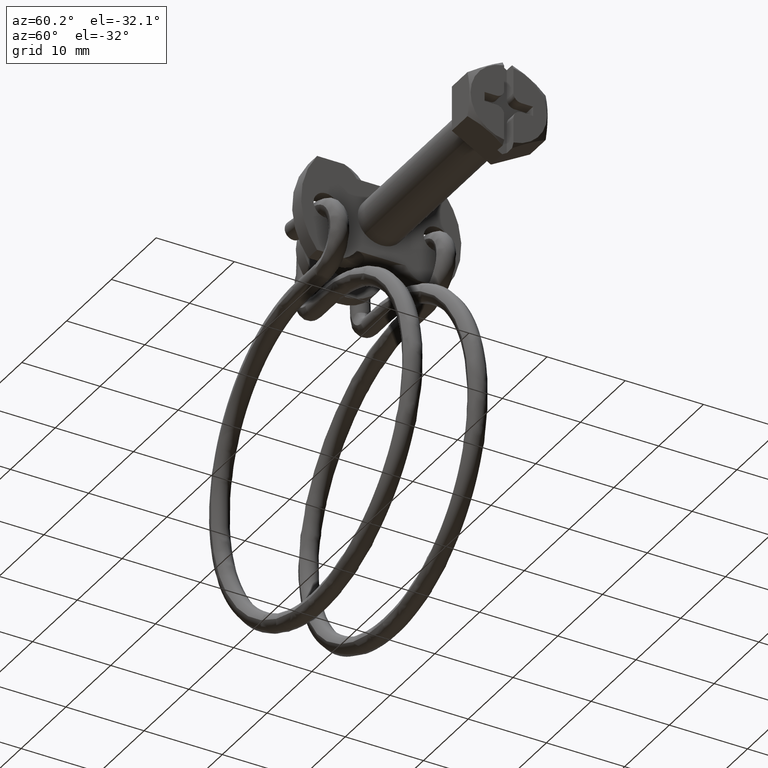
[diagram: clean part render]
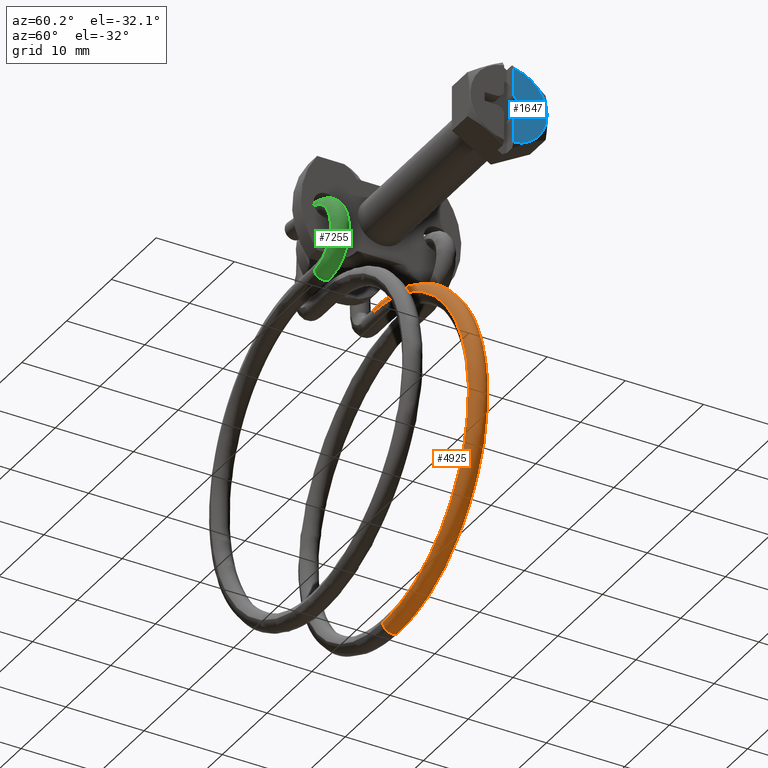
[diagram: same view with three faces highlighted in distinct colors, each labeled with its STEP entity id]
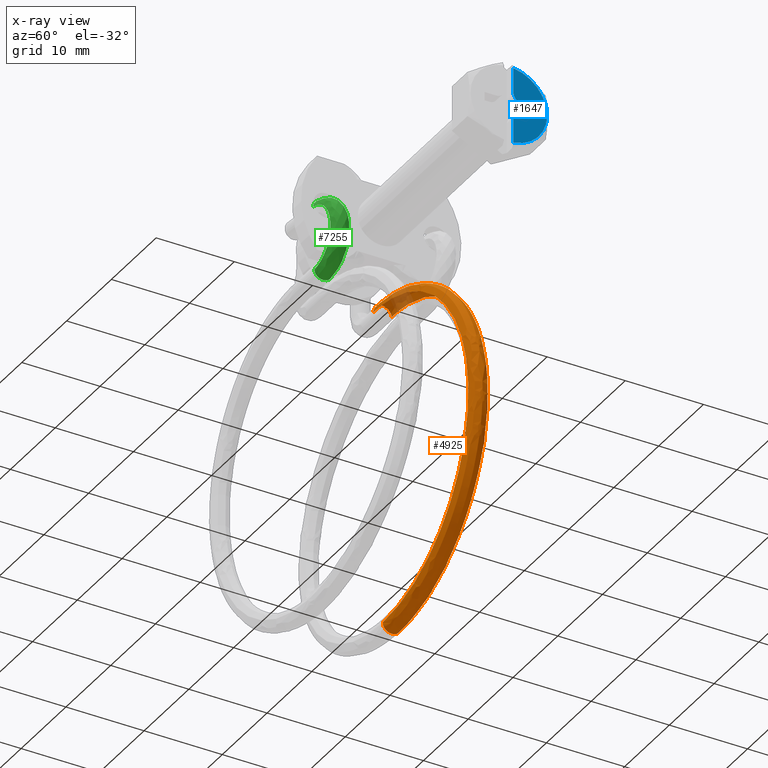
[diagram: x-ray of the same camera — body ghosted, the three highlighted faces saturated]
A machine part, auxiliary view with three faces highlighted in distinct colors.
The next image is the same camera in x-ray (body ghosted, the three faces saturated) — at least one of them is partly hidden behind the body in this view.
Their STEP definitions:

[orange] entity #4925 — the highlighted face is a freeform B-spline surface patch.
#4174=CARTESIAN_POINT('',(-30.454075023304409,5.899512904609259,-48.003588775773807));
#4175=VERTEX_POINT('',#4174);
#4200=CARTESIAN_POINT('',(-30.454061088412811,3.600487095402431,-48.070524030237998));
#4201=VERTEX_POINT('',#4200);
#4421=CARTESIAN_POINT('',(-30.454061088412811,3.600487095402431,-48.070524030237998));
#4422=CARTESIAN_POINT('',(-30.454099338260310,3.609248899652174,-48.371465802510500));
#4423=CARTESIAN_POINT('',(-30.454138103474818,3.741843315246648,-48.666947515876707));
#4424=CARTESIAN_POINT('',(-30.454194776556751,4.179830316902110,-49.080152389208301));
#4425=CARTESIAN_POINT('',(-30.454212335440769,4.482525852275454,-49.195331102686502));
#4426=CARTESIAN_POINT('',(-30.454215983586849,5.084409401660250,-49.177807494045602));
#4427=CARTESIAN_POINT('',(-30.454202050384261,5.379891117460528,-49.045213079376992));
#4428=CARTESIAN_POINT('',(-30.454150536560000,5.793095994314300,-48.607226081043798));
#4429=CARTESIAN_POINT('',(-30.454113273151911,5.908274708858999,-48.304530548046301));
#4430=CARTESIAN_POINT('',(-30.454075023304409,5.899512904609259,-48.003588775773807));
#4431=B_SPLINE_CURVE_WITH_KNOTS('',3,(#4421,#4422,#4423,#4424,#4425,#4426,#4427,#4428,#4429,#4430),.UNSPECIFIED.,.F.,.U.,(4,2,2,2,4),(0.0,0.125000000000000,0.250000000000000,0.375000000000000,0.500000000000000),.UNSPECIFIED.);
#4432=EDGE_CURVE('',#4201,#4175,#4431,.T.);
#4622=CARTESIAN_POINT('',(-30.451507756549422,4.726193869642737,-7.703588938273505));
#4623=VERTEX_POINT('',#4622);
#4624=CARTESIAN_POINT('',(-30.454075023304409,5.899512904609259,-48.003588775773807));
#4625=CARTESIAN_POINT('',(-27.815443942494252,5.899522660544919,-48.003923863062603));
#4626=CARTESIAN_POINT('',(-25.179603394154729,5.884262028142829,-47.479766779551802));
#4627=CARTESIAN_POINT('',(-20.305552310412541,5.825501640117943,-45.461523184038001));
#4628=CARTESIAN_POINT('',(-18.070153477136468,5.782024999911712,-43.968230617387817));
#4629=CARTESIAN_POINT('',(-14.339526140095250,5.673432509210372,-40.238403326540151));
#4630=CARTESIAN_POINT('',(-12.845764101527950,5.608359356463061,-38.003335142208073));
#4631=CARTESIAN_POINT('',(-10.826485882948781,5.466467382001052,-33.129770172069129));
#4632=CARTESIAN_POINT('',(-10.301763690552241,5.389704342674591,-30.493189344405071));
#4633=CARTESIAN_POINT('',(-10.301260366396621,5.236114139596469,-25.217825206841731));
#4634=CARTESIAN_POINT('',(-10.825479961656320,5.159347360303813,-22.581115922534700));
#4635=CARTESIAN_POINT('',(-12.843888223822590,5.017441563008604,-17.707076179393152));
#4636=CARTESIAN_POINT('',(-14.337284159021509,4.952358349104658,-15.471662424519030));
#4637=CARTESIAN_POINT('',(-18.067409417154540,4.843742516348718,-11.741033403728551));
#4638=CARTESIAN_POINT('',(-20.302672959097269,4.800252633380024,-10.247285987881551));
#4639=CARTESIAN_POINT('',(-25.176706024528070,4.741466727991902,-8.228165947252389));
#4640=CARTESIAN_POINT('',(-27.813127605637430,4.726193869642737,-7.703588938273505));
#4641=CARTESIAN_POINT('',(-30.451507756549422,4.726193869642737,-7.703588938273505));
#4642=B_SPLINE_CURVE_WITH_KNOTS('',3,(#4624,#4625,#4626,#4627,#4628,#4629,#4630,#4631,#4632,#4633,#4634,#4635,#4636,#4637,#4638,#4639,#4640,#4641),.UNSPECIFIED.,.F.,.U.,(4,2,2,2,2,2,2,2,4),(0.0,0.049345922667607,0.098691845335213,0.148037768002820,0.197383690670426,0.246729613338034,0.296075536005640,0.345421458673246,0.394767381340853),.UNSPECIFIED.);
#4643=EDGE_CURVE('',#4175,#4623,#4642,.T.);
#4646=CARTESIAN_POINT('',(-30.451507756549429,2.427168060362325,-7.770524192737965));
#4647=VERTEX_POINT('',#4646);
#4648=CARTESIAN_POINT('',(-30.454061088412811,3.600487095402431,-48.070524030237998));
#4649=CARTESIAN_POINT('',(-27.815430007548120,3.600496851337234,-48.070859117526801));
#4650=CARTESIAN_POINT('',(-25.179589640500939,3.585236218935038,-47.546702034016000));
#4651=CARTESIAN_POINT('',(-20.305539254740971,3.526475830906472,-45.528458438502199));
#4652=CARTESIAN_POINT('',(-18.070140937858540,3.482999190696653,-44.035165871852072));
#4653=CARTESIAN_POINT('',(-14.339514890594909,3.374406699990221,-40.305338581004392));
#4654=CARTESIAN_POINT('',(-12.845753624899920,3.309333547237689,-38.070270396672349));
#4655=CARTESIAN_POINT('',(-10.826477091541230,3.167441572767344,-33.196705426533399));
#4656=CARTESIAN_POINT('',(-10.301755810830359,3.090678533436648,-30.560124598867120));
#4657=CARTESIAN_POINT('',(-10.301254310784611,2.937088330347174,-25.284760461308320));
#4658=CARTESIAN_POINT('',(-10.825474817751379,2.860321551050563,-22.648051177001371));
#4659=CARTESIAN_POINT('',(-12.843884765213680,2.718415753746456,-17.774011433855250));
#4660=CARTESIAN_POINT('',(-14.337281473338830,2.653332539839569,-15.538597678983450));
#4661=CARTESIAN_POINT('',(-18.067408021363018,2.544716707074533,-11.807968658192969));
#4662=CARTESIAN_POINT('',(-20.302672079763070,2.501226824104256,-10.314221242345990));
#4663=CARTESIAN_POINT('',(-25.176705843256180,2.442440918712449,-8.295101201716838));
#4664=CARTESIAN_POINT('',(-27.813127605695350,2.427168060362325,-7.770524192737965));
#4665=CARTESIAN_POINT('',(-30.451507756549429,2.427168060362325,-7.770524192737965));
#4666=B_SPLINE_CURVE_WITH_KNOTS('',3,(#4648,#4649,#4650,#4651,#4652,#4653,#4654,#4655,#4656,#4657,#4658,#4659,#4660,#4661,#4662,#4663,#4664,#4665),.UNSPECIFIED.,.F.,.U.,(4,2,2,2,2,2,2,2,4),(0.0,0.049345922667607,0.098691845335213,0.148037768002820,0.197383690670426,0.246729613338034,0.296075536005640,0.345421458673246,0.394767381340853),.UNSPECIFIED.);
#4667=EDGE_CURVE('',#4201,#4647,#4666,.T.);
#4705=CARTESIAN_POINT('',(-31.086206037770861,3.599433340079421,-48.034330687236903));
#4706=CARTESIAN_POINT('',(-31.086586169003990,3.599878915086058,-48.046364134231432));
#4707=CARTESIAN_POINT('',(-31.096473119953298,3.603946860878733,-48.359564758715557));
#4708=CARTESIAN_POINT('',(-31.106296821352789,3.741840751817560,-48.666864703698373));
#4709=CARTESIAN_POINT('',(-31.119738059518049,4.179827856155582,-49.080067870252499));
#4710=CARTESIAN_POINT('',(-31.123650664602948,4.482523377129967,-49.195246088862149));
#4711=CARTESIAN_POINT('',(-31.123650664602948,5.084406926532179,-49.177722480221249));
#4712=CARTESIAN_POINT('',(-31.119738059518049,5.379888656748170,-49.045128560421162));
#4713=CARTESIAN_POINT('',(-31.106296821352011,5.793093735496919,-48.607143259999873));
#4714=CARTESIAN_POINT('',(-31.096473065713390,5.912876024460924,-48.292339452962757));
#4715=CARTESIAN_POINT('',(-31.086586059838329,5.898714306647575,-47.979430964204482));
#4716=CARTESIAN_POINT('',(-31.086205874040910,5.898458998416086,-47.967390248515791));
#4717=CARTESIAN_POINT('',(-30.875491382640931,3.599434119164639,-48.034357446491967));
#4718=CARTESIAN_POINT('',(-30.875745313401431,3.599879694637880,-48.046390909513093));
#4719=CARTESIAN_POINT('',(-30.882349877180349,3.603947652566556,-48.359591950838187));
#4720=CARTESIAN_POINT('',(-30.888912189744708,3.741841555563992,-48.666892309994282));
#4721=CARTESIAN_POINT('',(-30.897891046339151,4.179828676400797,-49.080096043237774));
#4722=CARTESIAN_POINT('',(-30.900504698410181,4.482524202177766,-49.195274426803600));
#4723=CARTESIAN_POINT('',(-30.900504698410181,5.084407751580070,-49.177750818162700));
#4724=CARTESIAN_POINT('',(-30.897891046339151,5.379889476993752,-49.045156733406444));
#4725=CARTESIAN_POINT('',(-30.888912189744190,5.793094539243534,-48.607170866295760));
#4726=CARTESIAN_POINT('',(-30.882349840947640,5.912876816149099,-48.292366645083113));
#4727=CARTESIAN_POINT('',(-30.875745240477880,5.898715086199304,-47.979457739481553));
#4728=CARTESIAN_POINT('',(-30.875491273267990,5.898459777501130,-47.967417007763963));
#4729=CARTESIAN_POINT('',(-30.664776727511001,3.599434898249858,-48.034384205747038));
#4730=CARTESIAN_POINT('',(-30.664904457798869,3.599880474189700,-48.046417684794768));
#4731=CARTESIAN_POINT('',(-30.668226634407389,3.603948444254379,-48.359619142960831));
#4732=CARTESIAN_POINT('',(-30.671527558136621,3.741842359310423,-48.666919916290169));
#4733=CARTESIAN_POINT('',(-30.676044033160249,4.179829496646014,-49.080124216223027));
#4734=CARTESIAN_POINT('',(-30.677358732217410,4.482525027225566,-49.195302764745051));
#4735=CARTESIAN_POINT('',(-30.677358732217410,5.084408576627960,-49.177779156104151));
#4736=CARTESIAN_POINT('',(-30.676044033160249,5.379890297239336,-49.045184906391718));
#4737=CARTESIAN_POINT('',(-30.671527558136361,5.793095342990149,-48.607198472591648));
#4738=CARTESIAN_POINT('',(-30.668226616181901,5.912877607837277,-48.292393837203441));
#4739=CARTESIAN_POINT('',(-30.664904421117420,5.898715865751031,-47.979484514758617));
#4740=CARTESIAN_POINT('',(-30.664776672495069,5.898460556586175,-47.967443767012128));
#4741=CARTESIAN_POINT('',(-27.820461454954799,3.599446320616424,-48.034776529971772));
#4742=CARTESIAN_POINT('',(-27.818885681460930,3.599891903470330,-48.046810246499142));
#4743=CARTESIAN_POINT('',(-27.777900900723790,3.603960053364850,-48.360017881347112));
#4744=CARTESIAN_POINT('',(-27.737178310930439,3.741854147103069,-48.667324791833479));
#4745=CARTESIAN_POINT('',(-27.681459798531069,4.179841528915619,-49.080537488886982));
#4746=CARTESIAN_POINT('',(-27.665240717208331,4.482537130659321,-49.195718481709818));
#4747=CARTESIAN_POINT('',(-27.665240717208341,5.084420680063208,-49.178194873068890));
#4748=CARTESIAN_POINT('',(-27.681459798531058,5.379902329513251,-49.045598179056540));
#4749=CARTESIAN_POINT('',(-27.737178310931029,5.793107130784679,-48.607603348134880));
#4750=CARTESIAN_POINT('',(-27.777901125572260,5.912889216952045,-48.292792575556952));
#4751=CARTESIAN_POINT('',(-27.818886133992201,5.898727295030052,-47.979877076394693));
#4752=CARTESIAN_POINT('',(-27.820462133673530,5.898471978949969,-47.967836091134430));
#4753=CARTESIAN_POINT('',(-22.556451728358191,3.568974378190818,-46.988156439205049));
#4754=CARTESIAN_POINT('',(-22.551723288873120,3.569401709027918,-46.999563253538177));
#4755=CARTESIAN_POINT('',(-22.428739842153981,3.572995136565881,-47.296465595096727));
#4756=CARTESIAN_POINT('',(-22.306543154463519,3.710417544873693,-47.587571521758221));
#4757=CARTESIAN_POINT('',(-22.139348049898761,4.147759545082989,-47.978617290786502));
#4758=CARTESIAN_POINT('',(-22.090679288282729,4.450267282933503,-48.087345720681718));
#4759=CARTESIAN_POINT('',(-22.090679288282690,5.052150832335824,-48.069822112040782));
#4760=CARTESIAN_POINT('',(-22.139348049898690,5.347820345675324,-47.943677980951307));
#4761=CARTESIAN_POINT('',(-22.306543154463579,5.761670528553142,-47.527850078059622));
#4762=CARTESIAN_POINT('',(-22.428740516862870,5.881924302750629,-47.229240378753850));
#4763=CARTESIAN_POINT('',(-22.551724646789911,5.868237105829205,-46.932630263468603));
#4764=CARTESIAN_POINT('',(-22.556453764997919,5.868000044386069,-46.921216270388733));
#4765=CARTESIAN_POINT('',(-15.860100035019871,3.438739556574552,-42.514979806718543));
#4766=CARTESIAN_POINT('',(-15.851362682561639,3.439088911479635,-42.523708380988417));
#4767=CARTESIAN_POINT('',(-15.624110176971660,3.440654238856562,-42.750951547429899));
#4768=CARTESIAN_POINT('',(-15.398311468342010,3.576061521320856,-42.972843927935223));
#4769=CARTESIAN_POINT('',(-15.089363333866030,4.010646334058786,-43.269188553195782));
#4770=CARTESIAN_POINT('',(-14.999431734810750,4.312351483220030,-43.350350461911127));
#4771=CARTESIAN_POINT('',(-14.999431734810750,4.914235032622621,-43.332826853270213));
#4772=CARTESIAN_POINT('',(-15.089363333865981,5.210707134652650,-43.234249243364722));
#4773=CARTESIAN_POINT('',(-15.398311468340180,5.627314505000710,-42.913122484236233));
#4774=CARTESIAN_POINT('',(-15.624111423723070,5.749583416170396,-42.683726713257514));
#4775=CARTESIAN_POINT('',(-15.851365191762820,5.737924330673861,-42.456776160057430));
#4776=CARTESIAN_POINT('',(-15.860103798385600,5.737765256355357,-42.448040791476657));
#4777=CARTESIAN_POINT('',(-11.385559147119009,3.243822910303210,-35.820175939568983));
#4778=CARTESIAN_POINT('',(-11.374144536859330,3.244055628004869,-35.824898374725130));
#4779=CARTESIAN_POINT('',(-11.077258404104080,3.242587302241469,-35.947944628464022));
#4780=CARTESIAN_POINT('',(-10.782271533819870,3.374980338681275,-36.066306672658683));
#4781=CARTESIAN_POINT('',(-10.378656987842421,3.805440921959958,-36.220996350206242));
#4782=CARTESIAN_POINT('',(-10.261168977810160,4.105945550681722,-36.260923972193957));
#4783=CARTESIAN_POINT('',(-10.261168977810120,4.707829100083708,-36.243400363553022));
#4784=CARTESIAN_POINT('',(-10.378656987842341,5.005501722553365,-36.186057040377712));
#4785=CARTESIAN_POINT('',(-10.782271533819420,5.426233322361187,-36.006585228959807));
#4786=CARTESIAN_POINT('',(-11.077260032874960,5.551516496197571,-35.880720365936433));
#4787=CARTESIAN_POINT('',(-11.374147814916199,5.542891080694497,-35.757967304281173));
#4788=CARTESIAN_POINT('',(-11.385564063635609,5.542848660321596,-35.753238649857629));
#4789=CARTESIAN_POINT('',(-9.814064521808685,3.013885126460837,-27.922500733718390));
#4790=CARTESIAN_POINT('',(-9.801710010561346,3.013980306043796,-27.922499145828869));
#4791=CARTESIAN_POINT('',(-9.480377701979336,3.008934708762759,-27.922676821389111));
#4792=CARTESIAN_POINT('',(-9.161101044801931,3.137773358477089,-27.918956311582271));
#4793=CARTESIAN_POINT('',(-8.724252099946900,3.563370667050871,-27.906607047507869));
#4794=CARTESIAN_POINT('',(-8.597089900943235,3.862459646924162,-27.897911365291261));
#4795=CARTESIAN_POINT('',(-8.597089900943194,4.464343196326843,-27.880387756650322));
#4796=CARTESIAN_POINT('',(-8.724252099946833,4.763431467644654,-27.871667737675949));
#4797=CARTESIAN_POINT('',(-9.161101044800446,5.189026342156669,-27.859234867881590));
#4798=CARTESIAN_POINT('',(-9.480379464869055,5.317863922344740,-27.855453232936870));
#4799=CARTESIAN_POINT('',(-9.801713558540760,5.312815798232474,-27.855569432034240));
#4800=CARTESIAN_POINT('',(-9.814069843161708,5.312910935720592,-27.855565478745490));
#4801=CARTESIAN_POINT('',(-11.384050667813501,2.783935920305809,-20.024433205598019));
#4802=CARTESIAN_POINT('',(-11.372635155722060,2.783893554956314,-20.019707360630939));
#4803=CARTESIAN_POINT('',(-11.075725566945140,2.775270508936560,-19.897010371003638));
#4804=CARTESIAN_POINT('',(-10.780715390698839,2.900554595838770,-19.771201259137150));
#4805=CARTESIAN_POINT('',(-10.377068956426211,3.321288388778318,-19.591804778205731));
#4806=CARTESIAN_POINT('',(-10.259571664043760,3.618961649670846,-19.534483382952448));
#4807=CARTESIAN_POINT('',(-10.259571664043721,4.220845199073041,-19.516959774311481));
#4808=CARTESIAN_POINT('',(-10.377068956426131,4.521349189372017,-19.556865468374479));
#4809=CARTESIAN_POINT('',(-10.780715390696610,4.951807579518850,-19.711479815436672));
#4810=CARTESIAN_POINT('',(-11.075727195845770,5.084199742145156,-19.829787456668569));
#4811=CARTESIAN_POINT('',(-11.372638434038819,5.082729086644940,-19.952779003551100));
#4812=CARTESIAN_POINT('',(-11.384055584719430,5.082961788808772,-19.957499985462309));
#4813=CARTESIAN_POINT('',(-15.857534141858221,2.588989542182436,-13.328608138194941));
#4814=CARTESIAN_POINT('',(-15.848795253631691,2.588830521860552,-13.319875543803370));
#4815=CARTESIAN_POINT('',(-15.621502803768189,2.577173360541966,-13.092965767712929));
#4816=CARTESIAN_POINT('',(-15.395664406396870,2.699442742217492,-12.863610547316499));
#4817=CARTESIAN_POINT('',(-15.086661967974560,3.116051677395826,-12.542537538403490));
#4818=CARTESIAN_POINT('',(-14.996714561600090,3.412524234956666,-12.443975574627119));
#4819=CARTESIAN_POINT('',(-14.996714561600070,4.014407784359545,-12.426451965986169));
#4820=CARTESIAN_POINT('',(-15.086661967974520,4.316112477989313,-12.507598228572080));
#4821=CARTESIAN_POINT('',(-15.395664406396611,4.750695725897267,-12.803889103616250));
#4822=CARTESIAN_POINT('',(-15.621504050737871,4.886102610396414,-13.025743425106400));
#4823=CARTESIAN_POINT('',(-15.848797763273129,4.887666087050337,-13.252948337385980));
#4824=CARTESIAN_POINT('',(-15.857537905884660,4.888015460931280,-13.261676643852880));
#4825=CARTESIAN_POINT('',(-22.553295581903061,2.458714922259477,-8.854064553179404));
#4826=CARTESIAN_POINT('',(-22.548565252437690,2.458477902195892,-8.842652900932418));
#4827=CARTESIAN_POINT('',(-22.425532648635809,2.444792021442883,-8.546062679515146));
#4828=CARTESIAN_POINT('',(-22.303287118334030,2.565045661962267,-8.247472778825154));
#4829=CARTESIAN_POINT('',(-22.136025185068920,2.978896567771823,-7.831669709460057));
#4830=CARTESIAN_POINT('',(-22.087336970312212,3.274566291576325,-7.705532807157247));
#4831=CARTESIAN_POINT('',(-22.087336970312219,3.876449840978013,-7.688009198516257));
#4832=CARTESIAN_POINT('',(-22.136025185068871,4.178957368366353,-7.796730399628717));
#4833=CARTESIAN_POINT('',(-22.303287118332840,4.616298645642891,-8.187751335123135));
#4834=CARTESIAN_POINT('',(-22.425533323615021,4.753721282427447,-8.478840719189163));
#4835=CARTESIAN_POINT('',(-22.548566610897861,4.757313489786287,-8.775726463889777));
#4836=CARTESIAN_POINT('',(-22.553297619357441,4.757740874605070,-8.787134212765597));
#4837=CARTESIAN_POINT('',(-27.818095997883631,2.428218573932947,-7.806606191841603));
#4838=CARTESIAN_POINT('',(-27.816518807664469,2.427963287234582,-7.794567135319138));
#4839=CARTESIAN_POINT('',(-27.775497178880428,2.413802303921378,-7.481658561826865));
#4840=CARTESIAN_POINT('',(-27.734737976769260,2.533583881242005,-7.166854702054521));
#4841=CARTESIAN_POINT('',(-27.678969369715219,2.946788888563189,-6.728866951297073));
#4842=CARTESIAN_POINT('',(-27.662735706360451,3.242270598013657,-6.596272318234503));
#4843=CARTESIAN_POINT('',(-27.662735706360451,3.844154147416751,-6.578748709593524));
#4844=CARTESIAN_POINT('',(-27.678969369715269,4.146849689156253,-6.693927641465689));
#4845=CARTESIAN_POINT('',(-27.734737976768280,4.584836864920990,-7.107133258353291));
#4846=CARTESIAN_POINT('',(-27.775497403931961,4.722731567512120,-7.414436691026203));
#4847=CARTESIAN_POINT('',(-27.816519260603371,4.726798880070195,-7.727640878454578));
#4848=CARTESIAN_POINT('',(-27.818096677213351,4.727244534145758,-7.739676121663832));
#4849=CARTESIAN_POINT('',(-30.662199591304891,2.428219478423177,-7.806637258265311));
#4850=CARTESIAN_POINT('',(-30.662325778111271,2.427964192339742,-7.794598222863996));
#4851=CARTESIAN_POINT('',(-30.665607809831819,2.413803225020425,-7.481690198718111));
#4852=CARTESIAN_POINT('',(-30.668868845490440,2.533584818232898,-7.166886884780513));
#4853=CARTESIAN_POINT('',(-30.673330743830530,2.946789847298130,-6.728899880857471));
#4854=CARTESIAN_POINT('',(-30.674629556180090,3.242271563078085,-6.596305465189040));
#4855=CARTESIAN_POINT('',(-30.674629556180090,3.844155112480565,-6.578781856548059));
#4856=CARTESIAN_POINT('',(-30.673330743830530,4.146850647891820,-6.693960571026090));
#4857=CARTESIAN_POINT('',(-30.668868845490739,4.584837801912730,-7.107165441079138));
#4858=CARTESIAN_POINT('',(-30.665607791826250,4.722732488611113,-7.414468327914473));
#4859=CARTESIAN_POINT('',(-30.662325741872809,4.726799785175281,-7.727671965993438));
#4860=CARTESIAN_POINT('',(-30.662199536953491,4.727245438635826,-7.739707188078512));
#4861=CARTESIAN_POINT('',(-30.872891426060370,2.428219478423177,-7.806637258265311));
#4862=CARTESIAN_POINT('',(-30.873143799673130,2.427964192339742,-7.794598222863996));
#4863=CARTESIAN_POINT('',(-30.879707863114231,2.413803225020425,-7.481690198718111));
#4864=CARTESIAN_POINT('',(-30.886229934431491,2.533584818232898,-7.166886884780513));
#4865=CARTESIAN_POINT('',(-30.895153731111659,2.946789847298130,-6.728899880857471));
#4866=CARTESIAN_POINT('',(-30.897751355810769,3.242271563078085,-6.596305465189040));
#4867=CARTESIAN_POINT('',(-30.897751355810769,3.844155112480565,-6.578781856548059));
#4868=CARTESIAN_POINT('',(-30.895153731111652,4.146850647891820,-6.693960571026090));
#4869=CARTESIAN_POINT('',(-30.886229934432059,4.584837801912730,-7.107165441079138));
#4870=CARTESIAN_POINT('',(-30.879707827103100,4.722732488611113,-7.414468327914473));
#4871=CARTESIAN_POINT('',(-30.873143727196211,4.726799785175281,-7.727671965993438));
#4872=CARTESIAN_POINT('',(-30.872891317357581,4.727245438635826,-7.739707188078512));
#4873=CARTESIAN_POINT('',(-31.083583260815860,2.428219478423177,-7.806637258265311));
#4874=CARTESIAN_POINT('',(-31.083961821234990,2.427964192339742,-7.794598222863996));
#4875=CARTESIAN_POINT('',(-31.093807916396660,2.413803225020425,-7.481690198718111));
#4876=CARTESIAN_POINT('',(-31.103591023372520,2.533584818232898,-7.166886884780513));
#4877=CARTESIAN_POINT('',(-31.116976718392781,2.946789847298130,-6.728899880857471));
#4878=CARTESIAN_POINT('',(-31.120873155441458,3.242271563078085,-6.596305465189040));
#4879=CARTESIAN_POINT('',(-31.120873155441458,3.844155112480565,-6.578781856548059));
#4880=CARTESIAN_POINT('',(-31.116976718392770,4.146850647891820,-6.693960571026090));
#4881=CARTESIAN_POINT('',(-31.103591023373390,4.584837801912730,-7.107165441079138));
#4882=CARTESIAN_POINT('',(-31.093807862379961,4.722732488611113,-7.414468327914473));
#4883=CARTESIAN_POINT('',(-31.083961712519610,4.726799785175281,-7.727671965993438));
#4884=CARTESIAN_POINT('',(-31.083583097761672,4.727245438635826,-7.739707188078512));
#4885=B_SPLINE_SURFACE_WITH_KNOTS('',3,3,((#4705,#4717,#4729,#4741,#4753,#4765,#4777,#4789,#4801,#4813,#4825,#4837,#4849,#4861,#4873),(#4706,#4718,#4730,#4742,#4754,#4766,#4778,#4790,#4802,#4814,#4826,#4838,#4850,#4862,#4874),(#4707,#4719,#4731,#4743,#4755,#4767,#4779,#4791,#4803,#4815,#4827,#4839,#4851,#4863,#4875),(#4708,#4720,#4732,#4744,#4756,#4768,#4780,#4792,#4804,#4816,#4828,#4840,#4852,#4864,#4876),(#4709,#4721,#4733,#4745,#4757,#4769,#4781,#4793,#4805,#4817,#4829,#4841,#4853,#4865,#4877),(#4710,#4722,#4734,#4746,#4758,#4770,#4782,#4794,#4806,#4818,#4830,#4842,#4854,#4866,#4878),(#4711,#4723,#4735,#4747,#4759,#4771,#4783,#4795,#4807,#4819,#4831,#4843,#4855,#4867,#4879),(#4712,#4724,#4736,#4748,#4760,#4772,#4784,#4796,#4808,#4820,#4832,#4844,#4856,#4868,#4880),(#4713,#4725,#4737,#4749,#4761,#4773,#4785,#4797,#4809,#4821,#4833,#4845,#4857,#4869,#4881),(#4714,#4726,#4738,#4750,#4762,#4774,#4786,#4798,#4810,#4822,#4834,#4846,#4858,#4870,#4882),(#4715,#4727,#4739,#4751,#4763,#4775,#4787,#4799,#4811,#4823,#4835,#4847,#4859,#4871,#4883),(#4716,#4728,#4740,#4752,#4764,#4776,#4788,#4800,#4812,#4824,#4836,#4848,#4860,#4872,#4884)),.UNSPECIFIED.,.F.,.F.,.U.,(4,1,2,2,2,1,4),(4,2,1,1,1,1,1,1,1,2,4),(0.0,0.036148413744737,0.939857441997131,1.843566470249526,2.747275498501920,3.650984526754314,3.687138129851196),(0.0,0.668179697094958,9.020314536788098,17.372449376481221,25.724584216174360,34.076719055867457,42.428853895560643,50.780988735253757,59.133123574946872,67.485258414639972,68.153429290032477),.UNSPECIFIED.);
#4886=ORIENTED_EDGE('',*,*,#4643,.T.);
#4887=CARTESIAN_POINT('',(-30.451507756549422,3.543213337770300,-6.587543660868540));
#4888=VERTEX_POINT('',#4887);
#4889=CARTESIAN_POINT('',(-30.451507756549422,3.543213337770300,-6.587543660868540));
#4890=CARTESIAN_POINT('',(-30.451507756549390,3.684296090181129,-6.583325795980694));
#4891=CARTESIAN_POINT('',(-30.451507756549489,3.901680231092887,-6.617464004571819));
#4892=CARTESIAN_POINT('',(-30.451507756549368,4.167165438612689,-6.741624228911956));
#4893=CARTESIAN_POINT('',(-30.451507756549621,4.395816188598288,-6.909455683844852));
#4894=CARTESIAN_POINT('',(-30.451507756549109,4.584855475437993,-7.149463911324902));
#4895=CARTESIAN_POINT('',(-30.451507756549631,4.698708930476250,-7.440847202267107));
#4896=CARTESIAN_POINT('',(-30.451507756549169,4.723742209972480,-7.618949557856443));
#4897=CARTESIAN_POINT('',(-30.451507756549422,4.726193869642737,-7.703588938273505));
#4898=B_SPLINE_CURVE_WITH_KNOTS('',3,(#4889,#4890,#4891,#4892,#4893,#4894,#4895,#4896,#4897),.UNSPECIFIED.,.F.,.U.,(4,1,1,1,1,1,4),(0.000000062858966,0.423389103985876,0.649198697146840,0.875012154008748,1.270163894155114,1.552430021215753,1.806461105990334),.UNSPECIFIED.);
#4899=EDGE_CURVE('',#4888,#4623,#4898,.T.);
#4900=ORIENTED_EDGE('',*,*,#4899,.F.);
#4901=CARTESIAN_POINT('',(-30.451507756568681,2.719816185604182,-6.970060639934831));
#4902=VERTEX_POINT('',#4901);
#4903=CARTESIAN_POINT('',(-30.451507756568681,2.719816185604182,-6.970060639934831));
#4904=CARTESIAN_POINT('',(-30.451507756566990,2.791121505834032,-6.890354255281642));
#4905=CARTESIAN_POINT('',(-30.451507756563210,2.948663348775093,-6.757393410842867));
#4906=CARTESIAN_POINT('',(-30.451507756556630,3.233093550375852,-6.625265756064983));
#4907=CARTESIAN_POINT('',(-30.451507756551980,3.436309758278237,-6.590619594940403));
#4908=CARTESIAN_POINT('',(-30.451507756549422,3.543213337770300,-6.587543660868540));
#4909=B_SPLINE_CURVE_WITH_KNOTS('',3,(#4903,#4904,#4905,#4906,#4907,#4908),.UNSPECIFIED.,.F.,.U.,(4,1,1,4),(0.000000014743226,0.320839143794775,0.612500673127255,0.933339802178832),.UNSPECIFIED.);
#4910=EDGE_CURVE('',#4902,#4888,#4909,.T.);
#4911=ORIENTED_EDGE('',*,*,#4910,.F.);
#4912=CARTESIAN_POINT('',(-30.451507756549429,2.427168060362325,-7.770524192737965));
#4913=CARTESIAN_POINT('',(-30.451507756552310,2.423662029278074,-7.652332358871713));
#4914=CARTESIAN_POINT('',(-30.451507756556929,2.447890427297053,-7.460600509950425));
#4915=CARTESIAN_POINT('',(-30.451507756563512,2.554760971068143,-7.188482448526175));
#4916=CARTESIAN_POINT('',(-30.451507756566890,2.653069713192173,-7.044587071180159));
#4917=CARTESIAN_POINT('',(-30.451507756568681,2.719816185604182,-6.970060639934831));
#4918=B_SPLINE_CURVE_WITH_KNOTS('',3,(#4912,#4913,#4914,#4915,#4916,#4917),.UNSPECIFIED.,.F.,.U.,(4,1,1,4),(0.000000016998409,0.354711559378336,0.572982490039926,0.873121454401477),.UNSPECIFIED.);
#4919=EDGE_CURVE('',#4647,#4902,#4918,.T.);
#4920=ORIENTED_EDGE('',*,*,#4919,.F.);
#4921=ORIENTED_EDGE('',*,*,#4667,.F.);
#4922=ORIENTED_EDGE('',*,*,#4432,.T.);
#4923=EDGE_LOOP('',(#4886,#4900,#4911,#4920,#4921,#4922));
#4924=FACE_OUTER_BOUND('',#4923,.T.);
#4925=ADVANCED_FACE('',(#4924),#4885,.T.);

[blue] entity #1647 — the highlighted face is a freeform B-spline surface patch.
#964=CARTESIAN_POINT('',(4.000000000000116,0.600000000000010,1.599998947640235));
#965=VERTEX_POINT('',#964);
#966=CARTESIAN_POINT('',(4.000000000000116,1.600000000000000,0.599999000000000));
#967=VERTEX_POINT('',#966);
#968=CARTESIAN_POINT('',(4.000000000000116,0.600000000000010,1.599998947640235));
#969=CARTESIAN_POINT('',(4.000000000000117,0.599942552336764,1.493636380291975));
#970=CARTESIAN_POINT('',(4.000000000000107,0.627676116903645,1.321870760218335));
#971=CARTESIAN_POINT('',(4.000000000000123,0.720987402743548,1.111448470657697));
#972=CARTESIAN_POINT('',(4.000000000000108,0.860282853263280,0.908231022775372));
#973=CARTESIAN_POINT('',(4.000000000000101,1.051266425672223,0.747560769211438));
#974=CARTESIAN_POINT('',(4.000000000000140,1.321881238510367,0.627686700705189));
#975=CARTESIAN_POINT('',(4.000000000000110,1.493637396548618,0.599941375709314));
#976=CARTESIAN_POINT('',(4.000000000000116,1.600000000000000,0.599999000000000));
#977=B_SPLINE_CURVE_WITH_KNOTS('',3,(#968,#969,#970,#971,#972,#973,#974,#975,#976),.UNSPECIFIED.,.F.,.U.,(4,1,1,1,1,1,4),(0.000000086264658,0.319071745784036,0.515431097266539,0.687254719682424,1.055404703866893,1.251764055292258,1.570835714828105),.UNSPECIFIED.);
#978=EDGE_CURVE('',#965,#967,#977,.T.);
#1014=CARTESIAN_POINT('',(4.000000000000116,3.099999999999910,0.599999000000000));
#1015=VERTEX_POINT('',#1014);
#1016=CARTESIAN_POINT('',(4.000000000000116,3.099999999999910,0.599999000000000));
#1017=CARTESIAN_POINT('',(4.000000000000116,1.600000000000000,0.599999000000000));
#1018=QUASI_UNIFORM_CURVE('',1,(#1016,#1017),.UNSPECIFIED.,.F.,.U.);
#1019=EDGE_CURVE('',#1015,#967,#1018,.T.);
#1042=CARTESIAN_POINT('',(4.000000000000116,3.099999999999910,-0.599998000000000));
#1043=VERTEX_POINT('',#1042);
#1044=CARTESIAN_POINT('',(4.000000000000116,3.099999999999910,-0.599998000000000));
#1045=CARTESIAN_POINT('',(4.000000000000116,3.099999999999910,0.599999000000000));
#1046=QUASI_UNIFORM_CURVE('',1,(#1044,#1045),.UNSPECIFIED.,.F.,.U.);
#1047=EDGE_CURVE('',#1043,#1015,#1046,.T.);
#1070=CARTESIAN_POINT('',(4.000000000000116,1.600000000000000,-0.599997999999914));
#1071=VERTEX_POINT('',#1070);
#1072=CARTESIAN_POINT('',(4.000000000000116,1.600000000000000,-0.599997999999914));
#1073=CARTESIAN_POINT('',(4.000000000000116,3.099999999999910,-0.599998000000000));
#1074=QUASI_UNIFORM_CURVE('',1,(#1072,#1073),.UNSPECIFIED.,.F.,.U.);
#1075=EDGE_CURVE('',#1071,#1043,#1074,.T.);
#1107=CARTESIAN_POINT('',(4.000000000000116,0.600000000000010,-1.599998052359790));
#1108=VERTEX_POINT('',#1107);
#1109=CARTESIAN_POINT('',(4.000000000000116,1.600000000000000,-0.599997999999914));
#1110=CARTESIAN_POINT('',(4.000000000000120,1.510002316732474,-0.599965742025006));
#1111=CARTESIAN_POINT('',(4.000000000000110,1.354580053036047,-0.621135206721819));
#1112=CARTESIAN_POINT('',(4.000000000000116,1.116784638570094,-0.712822200965404));
#1113=CARTESIAN_POINT('',(4.000000000000114,0.920713584125792,-0.850923313036081));
#1114=CARTESIAN_POINT('',(4.000000000000116,0.761742351332269,-1.039891786334989));
#1115=CARTESIAN_POINT('',(4.000000000000120,0.636624220276366,-1.280996277170516));
#1116=CARTESIAN_POINT('',(4.000000000000111,0.599888066982434,-1.477260861279595));
#1117=CARTESIAN_POINT('',(4.000000000000116,0.600000000000010,-1.599998052359790));
#1118=B_SPLINE_CURVE_WITH_KNOTS('',3,(#1109,#1110,#1111,#1112,#1113,#1114,#1115,#1116,#1117),.UNSPECIFIED.,.F.,.U.,(4,1,1,1,1,1,4),(0.000000086192854,0.269986899635894,0.466346258494695,0.760885258790818,0.981761047339367,1.202671866561777,1.570835773851217),.UNSPECIFIED.);
#1119=EDGE_CURVE('',#1071,#1108,#1118,.T.);
#1227=CARTESIAN_POINT('',(4.000000000000085,0.600000000000000,4.863124347857140));
#1228=VERTEX_POINT('',#1227);
#1229=CARTESIAN_POINT('',(4.000000000000116,0.600000000000010,1.599998947640235));
#1230=CARTESIAN_POINT('',(4.000000000000085,0.600000000000000,4.863124347857140));
#1231=QUASI_UNIFORM_CURVE('',1,(#1229,#1230),.UNSPECIFIED.,.F.,.U.);
#1232=EDGE_CURVE('',#965,#1228,#1231,.T.);
#1254=CARTESIAN_POINT('',(4.000000000000085,0.600000000000000,-4.863124347857140));
#1255=VERTEX_POINT('',#1254);
#1263=CARTESIAN_POINT('',(4.000000000000085,0.600000000000000,-4.863124347857140));
#1264=CARTESIAN_POINT('',(4.000000000000116,0.600000000000010,-1.599998052359790));
#1265=QUASI_UNIFORM_CURVE('',1,(#1263,#1264),.UNSPECIFIED.,.F.,.U.);
#1266=EDGE_CURVE('',#1255,#1108,#1265,.T.);
#1610=CARTESIAN_POINT('',(4.000000000000085,0.385214319456476,-5.348950451356711));
#1611=CARTESIAN_POINT('',(4.000000000000085,5.114799587224879,-5.348950451356711));
#1612=CARTESIAN_POINT('',(4.000000000000085,0.385214319456476,5.348950712235031));
#1613=CARTESIAN_POINT('',(4.000000000000085,5.114799587224879,5.348950712235031));
#1614=B_SPLINE_SURFACE_WITH_KNOTS('',1,1,((#1610,#1612),(#1611,#1613)),.UNSPECIFIED.,.F.,.F.,.U.,(2,2),(2,2),(0.0,4.729585267768403),(0.0,10.697901163591739),.UNSPECIFIED.);
#1615=ORIENTED_EDGE('',*,*,#1119,.T.);
#1616=ORIENTED_EDGE('',*,*,#1266,.F.);
#1617=CARTESIAN_POINT('',(4.000000000000085,0.600000000000000,-4.863124347857140));
#1618=CARTESIAN_POINT('',(4.000000000000098,1.003471041685528,-4.813468697280979));
#1619=CARTESIAN_POINT('',(4.000000000000082,1.545049018379854,-4.676604782625210));
#1620=CARTESIAN_POINT('',(4.000000000000089,2.323029006258106,-4.332085310776607));
#1621=CARTESIAN_POINT('',(4.000000000000086,2.859934626636774,-4.000942758547601));
#1622=CARTESIAN_POINT('',(4.000000000000078,3.440444883837946,-3.512275267552686));
#1623=CARTESIAN_POINT('',(4.000000000000101,3.860750936533910,-3.042304228935734));
#1624=CARTESIAN_POINT('',(4.000000000000076,4.264547025217621,-2.444299515078795));
#1625=CARTESIAN_POINT('',(4.000000000000092,4.592664197895363,-1.779045640304276));
#1626=CARTESIAN_POINT('',(4.000000000000085,4.804925953886484,-1.048562130039147));
#1627=CARTESIAN_POINT('',(4.000000000000071,4.900068100751946,-0.351772019751655));
#1628=CARTESIAN_POINT('',(4.000000000000165,4.909178132832229,0.444539648153709));
#1629=CARTESIAN_POINT('',(3.999999999999883,4.740386687163616,1.397316310410076));
#1630=CARTESIAN_POINT('',(4.000000000000418,4.326257543699240,2.372352284013676));
#1631=CARTESIAN_POINT('',(3.999999999999774,3.787588243987747,3.150903009090332));
#1632=CARTESIAN_POINT('',(4.000000000000292,3.170759150186443,3.766685070532665));
#1633=CARTESIAN_POINT('',(4.0,2.519382612895038,4.226652042356914));
#1634=CARTESIAN_POINT('',(4.000000000000133,1.671233925150157,4.643187953837571));
#1635=CARTESIAN_POINT('',(4.000000000000067,1.021810113363553,4.811217301536898));
#1636=CARTESIAN_POINT('',(4.000000000000085,0.600000000000000,4.863124347857140));
#1637=B_SPLINE_CURVE_WITH_KNOTS('',3,(#1617,#1618,#1619,#1620,#1621,#1622,#1623,#1624,#1625,#1626,#1627,#1628,#1629,#1630,#1631,#1632,#1633,#1634,#1635,#1636),.UNSPECIFIED.,.F.,.U.,(4,1,1,1,1,1,1,1,1,1,1,1,1,1,1,1,1,4),(0.000000057780838,1.219503204267673,1.662982452780033,2.549919328029256,3.104247167065315,3.935750155363486,4.434652288857867,5.266144946138768,6.153088712860318,6.707427540295860,7.372558242785355,8.536663001797013,9.589902199314869,10.532274021903961,11.363777826164529,12.195282659801840,12.915919676081851,14.190853585250860),.UNSPECIFIED.);
#1638=EDGE_CURVE('',#1255,#1228,#1637,.T.);
#1639=ORIENTED_EDGE('',*,*,#1638,.T.);
#1640=ORIENTED_EDGE('',*,*,#1232,.F.);
#1641=ORIENTED_EDGE('',*,*,#978,.T.);
#1642=ORIENTED_EDGE('',*,*,#1019,.F.);
#1643=ORIENTED_EDGE('',*,*,#1047,.F.);
#1644=ORIENTED_EDGE('',*,*,#1075,.F.);
#1645=EDGE_LOOP('',(#1615,#1616,#1639,#1640,#1641,#1642,#1643,#1644));
#1646=FACE_OUTER_BOUND('',#1645,.T.);
#1647=ADVANCED_FACE('',(#1646),#1614,.T.);

[green] entity #7255 — the highlighted face is a freeform B-spline surface patch.
#6999=CARTESIAN_POINT('',(-25.870537079225350,-7.384510899027202,-8.625423258449532));
#7000=VERTEX_POINT('',#6999);
#7006=CARTESIAN_POINT('',(-25.870537079214252,-7.795469376382691,-7.878765402090498));
#7007=VERTEX_POINT('',#7006);
#7008=CARTESIAN_POINT('',(-25.870537079214252,-7.795469376382691,-7.878765402090498));
#7009=CARTESIAN_POINT('',(-25.870537079216170,-7.778753677041034,-8.014173829975773));
#7010=CARTESIAN_POINT('',(-25.870537079220249,-7.690783364800571,-8.296432190826634));
#7011=CARTESIAN_POINT('',(-25.870537079223769,-7.504084216510983,-8.527366944641853));
#7012=CARTESIAN_POINT('',(-25.870537079225350,-7.384510899027202,-8.625423258449532));
#7013=B_SPLINE_CURVE_WITH_KNOTS('',3,(#7008,#7009,#7010,#7011,#7012),.UNSPECIFIED.,.F.,.U.,(4,1,4),(0.000000016998273,0.409279555230034,0.873121454401196),.UNSPECIFIED.);
#7014=EDGE_CURVE('',#7007,#7000,#7013,.T.);
#7049=CARTESIAN_POINT('',(-25.870537079214241,-5.512998254427686,-7.595347728923463));
#7050=VERTEX_POINT('',#7049);
#7059=CARTESIAN_POINT('',(-25.870537079214241,-6.512524978821084,-8.878292126482004));
#7060=VERTEX_POINT('',#7059);
#7061=CARTESIAN_POINT('',(-25.870537079214241,-6.512524978821084,-8.878292126482004));
#7062=CARTESIAN_POINT('',(-25.870537079214220,-6.353735671725527,-8.858772911236352));
#7063=CARTESIAN_POINT('',(-25.870537079214259,-6.126667567855721,-8.780117764377156));
#7064=CARTESIAN_POINT('',(-25.870537079214269,-5.861075303525620,-8.582729666521431));
#7065=CARTESIAN_POINT('',(-25.870537079214049,-5.700244535458514,-8.395984660350058));
#7066=CARTESIAN_POINT('',(-25.870537079214639,-5.593470254188457,-8.195789525365644));
#7067=CARTESIAN_POINT('',(-25.870537079213580,-5.507830152608120,-7.935938459199211));
#7068=CARTESIAN_POINT('',(-25.870537079214660,-5.495472546260437,-7.735406287567177));
#7069=CARTESIAN_POINT('',(-25.870537079214241,-5.512998254427686,-7.595347728923463));
#7070=B_SPLINE_CURVE_WITH_KNOTS('',3,(#7061,#7062,#7063,#7064,#7065,#7066,#7067,#7068,#7069),.UNSPECIFIED.,.F.,.U.,(4,1,1,1,1,1,4),(0.000000062859352,0.479841988233088,0.705657243693542,0.987892622215092,1.213709599920772,1.383072304640656,1.806461105989146),.UNSPECIFIED.);
#7071=EDGE_CURVE('',#7060,#7050,#7070,.T.);
#7073=CARTESIAN_POINT('',(-25.870537079225350,-7.384510899027202,-8.625423258449532));
#7074=CARTESIAN_POINT('',(-25.870537079224381,-7.301920237496455,-8.693367947043104));
#7075=CARTESIAN_POINT('',(-25.870537079222380,-7.142733457403804,-8.790566834127310));
#7076=CARTESIAN_POINT('',(-25.870537079218710,-6.844700996468988,-8.885264887018419));
#7077=CARTESIAN_POINT('',(-25.870537079215850,-6.637951139512401,-8.893943919226338));
#7078=CARTESIAN_POINT('',(-25.870537079214241,-6.512524978821084,-8.878292126482004));
#7079=B_SPLINE_CURVE_WITH_KNOTS('',3,(#7073,#7074,#7075,#7076,#7077,#7078),.UNSPECIFIED.,.F.,.U.,(4,1,1,4),(0.000000014743023,0.320839143792336,0.554166418028944,0.933339802172174),.UNSPECIFIED.);
#7080=EDGE_CURVE('',#7000,#7060,#7079,.T.);
#7089=CARTESIAN_POINT('',(-25.989362015922719,-7.799921299477465,-7.842912359559672));
#7090=CARTESIAN_POINT('',(-25.998889324095568,-7.771011442289358,-8.154849433650423));
#7091=CARTESIAN_POINT('',(-26.008153630786921,-7.608005636240607,-8.451801541580426));
#7092=CARTESIAN_POINT('',(-26.020329117400081,-7.123875065803683,-8.829313447249465));
#7093=CARTESIAN_POINT('',(-26.026459071939470,-6.497252578718476,-9.001286616654644));
#7094=CARTESIAN_POINT('',(-26.017540574011790,-5.931719692078281,-8.681281825371150));
#7095=CARTESIAN_POINT('',(-26.003350604102749,-5.554620399834319,-8.196829780588955));
#7096=CARTESIAN_POINT('',(-25.993505187987889,-5.469191030360642,-7.869029112346668));
#7097=CARTESIAN_POINT('',(-25.984023139015211,-5.517450181064292,-7.559494657907682));
#7098=CARTESIAN_POINT('',(-25.949761304056480,-7.799935510121832,-7.842611614471714));
#7099=CARTESIAN_POINT('',(-25.956113484293741,-7.771026792718370,-8.154524566881259));
#7100=CARTESIAN_POINT('',(-25.962290312502610,-7.608022094990493,-8.451453219009421));
#7101=CARTESIAN_POINT('',(-25.970408123330181,-7.123892981148909,-8.828934298216122));
#7102=CARTESIAN_POINT('',(-25.974495172407838,-6.497271227411251,-9.000891947517763));
#7103=CARTESIAN_POINT('',(-25.968548906657389,-5.931737273820471,-8.680909736501434));
#7104=CARTESIAN_POINT('',(-25.959087971334601,-5.554636283981604,-8.196493618543922));
#7105=CARTESIAN_POINT('',(-25.952523697718409,-5.469205736666932,-7.868717877383300));
#7106=CARTESIAN_POINT('',(-25.946201693328479,-5.517463753000451,-7.559207430036174));
#7107=CARTESIAN_POINT('',(-24.919542062296060,-7.799181777544662,-7.858563133936994));
#7108=CARTESIAN_POINT('',(-24.843290215576339,-7.770212605963596,-8.171755500317657));
#7109=CARTESIAN_POINT('',(-24.769143302201069,-7.607149122896548,-8.469928248175565));
#7110=CARTESIAN_POINT('',(-24.671696749394950,-7.122942751238102,-8.849044362944712));
#7111=CARTESIAN_POINT('',(-24.622635635231990,-6.496282100746640,-9.021825198537607));
#7112=CARTESIAN_POINT('',(-24.694014866869210,-5.930804738214720,-8.700645330151144));
#7113=CARTESIAN_POINT('',(-24.807584344294732,-5.553793788809686,-8.214323653412425));
#7114=CARTESIAN_POINT('',(-24.886382169122200,-5.468425714181298,-7.885225779840388));
#7115=CARTESIAN_POINT('',(-24.962271783663510,-5.516743897506607,-7.574441996340972));
#7116=CARTESIAN_POINT('',(-23.900017769226942,-7.818424718030532,-7.451317714239502));
#7117=CARTESIAN_POINT('',(-23.742064526901089,-7.790998953457440,-7.731846391072032));
#7118=CARTESIAN_POINT('',(-23.588471586134769,-7.629436271625995,-7.998257131009177));
#7119=CARTESIAN_POINT('',(-23.386614193414552,-7.147202307180619,-8.335630467273825));
#7120=CARTESIAN_POINT('',(-23.284985677016170,-6.521534698440517,-8.487395195442018));
#7121=CARTESIAN_POINT('',(-23.432845454286920,-5.954612555079650,-8.196791754549885));
#7122=CARTESIAN_POINT('',(-23.668100965598779,-5.575302855743882,-7.759119367134280));
#7123=CARTESIAN_POINT('',(-23.831328119501041,-5.488339841185162,-7.463775793267338));
#7124=CARTESIAN_POINT('',(-23.988531009547021,-5.535121949412553,-7.185500531409623));
#7125=CARTESIAN_POINT('',(-22.465901191000189,-7.882617164042579,-6.092789395432964));
#7126=CARTESIAN_POINT('',(-22.193154913588771,-7.860329646824479,-6.264575455736738));
#7127=CARTESIAN_POINT('',(-21.927937801152041,-7.703763370953517,-6.425245420662495));
#7128=CARTESIAN_POINT('',(-21.579379888555479,-7.228095863765062,-6.623650409537059));
#7129=CARTESIAN_POINT('',(-21.403892515728671,-6.605734248924878,-6.705449174208711));
#7130=CARTESIAN_POINT('',(-21.659209869360179,-6.034002200440442,-6.516639522557043));
#7131=CARTESIAN_POINT('',(-22.065438092384820,-5.647039597049714,-6.240928355292982));
#7132=CARTESIAN_POINT('',(-22.347291113845170,-5.554766773845865,-6.057958212591139));
#7133=CARTESIAN_POINT('',(-22.618741718004721,-5.596435043812779,-5.887908988627673));
#7134=CARTESIAN_POINT('',(-22.021913266793820,-7.927962305442506,-5.133133508483693));
#7135=CARTESIAN_POINT('',(-21.713699691201821,-7.909299816129768,-5.228201771421359));
#7136=CARTESIAN_POINT('',(-21.413994355869121,-7.756258499216122,-5.314271734897306));
#7137=CARTESIAN_POINT('',(-21.020110774534380,-7.285223620459584,-5.414634706252527));
#7138=CARTESIAN_POINT('',(-20.821803427632730,-6.665194380710481,-5.447072559981473));
#7139=CARTESIAN_POINT('',(-21.110321662314259,-6.090068949407391,-5.330078315625725));
#7140=CARTESIAN_POINT('',(-21.569374868513531,-5.697707230552020,-5.168630612535515));
#7141=CARTESIAN_POINT('',(-21.887879408190649,-5.601688343138426,-5.064939802966109));
#7142=CARTESIAN_POINT('',(-22.194628824163171,-5.639748805790020,-4.971243930705739));
#7143=CARTESIAN_POINT('',(-21.914771866977230,-8.021154982587788,-3.160862643693557));
#7144=CARTESIAN_POINT('',(-21.597997037068328,-8.009939159184677,-3.098334380117484));
#7145=CARTESIAN_POINT('',(-21.289966780964068,-7.864138942860186,-3.031158271498259));
#7146=CARTESIAN_POINT('',(-20.885142287947840,-7.402620580150900,-2.930119717468500));
#7147=CARTESIAN_POINT('',(-20.681326554119210,-6.787382591263265,-2.861158568919034));
#7148=CARTESIAN_POINT('',(-20.977858965258541,-6.205286347924195,-2.891690180728011));
#7149=CARTESIAN_POINT('',(-21.449663301046499,-5.801833567115731,-2.964966696526616));
#7150=CARTESIAN_POINT('',(-21.777014947347141,-5.698119376556795,-3.024134414637629));
#7151=CARTESIAN_POINT('',(-22.092284947647350,-5.728768548467399,-3.087286411178535));
#7152=CARTESIAN_POINT('',(-22.252188657964322,-8.068505600983377,-2.158764110276697));
#7153=CARTESIAN_POINT('',(-21.962358244887401,-8.061073780429480,-2.016153604197519));
#7154=CARTESIAN_POINT('',(-21.680528604593650,-7.918953109499133,-1.871105924547915));
#7155=CARTESIAN_POINT('',(-21.310137907615509,-7.462270538305607,-1.667725738040842));
#7156=CARTESIAN_POINT('',(-21.123658450439599,-6.849467210396465,-1.547238964724940));
#7157=CARTESIAN_POINT('',(-21.394968236125571,-6.263828768048464,-1.652735435531249));
#7158=CARTESIAN_POINT('',(-21.826641565638589,-5.854740094543161,-1.845286419074849));
#7159=CARTESIAN_POINT('',(-22.126149146139280,-5.747115556805894,-1.987210251140906));
#7160=CARTESIAN_POINT('',(-22.414602728275270,-5.773998701663474,-2.130064061823453));
#7161=CARTESIAN_POINT('',(-23.530686826161059,-8.139660543281838,-0.652885924606713));
#7162=CARTESIAN_POINT('',(-23.343156528671130,-8.137922245810071,-0.389781297768703));
#7163=CARTESIAN_POINT('',(-23.160803007786729,-8.001337928175511,-0.127565739324998));
#7164=CARTESIAN_POINT('',(-22.921147421422880,-7.551931432532236,0.229800707274658));
#7165=CARTESIAN_POINT('',(-22.800488765534318,-6.942791367850045,0.427814466095466));
#7166=CARTESIAN_POINT('',(-22.976035576784440,-6.351823227658966,0.209523641742255));
#7167=CARTESIAN_POINT('',(-23.255343145106480,-5.934254622596644,-0.162491248791511));
#7168=CARTESIAN_POINT('',(-23.449134904479489,-5.820746460347008,-0.428932388033412));
#7169=CARTESIAN_POINT('',(-23.635774344749802,-5.841963129037545,-0.691707915661034));
#7170=CARTESIAN_POINT('',(-24.500084546527429,-8.164008719994389,-0.137596515380747));
#7171=CARTESIAN_POINT('',(-24.390206458779449,-8.164222472815260,0.166820068965206));
#7172=CARTESIAN_POINT('',(-24.283361557245868,-8.029536319095682,0.469207167726532));
#7173=CARTESIAN_POINT('',(-24.142942126891700,-7.582624459059939,0.879368504178826));
#7174=CARTESIAN_POINT('',(-24.072245591141790,-6.974740360840317,1.103962742693672));
#7175=CARTESIAN_POINT('',(-24.175102293179389,-6.381944909495905,0.846999861060050));
#7176=CARTESIAN_POINT('',(-24.338754683814010,-5.961468921319466,0.413454953518897));
#7177=CARTESIAN_POINT('',(-24.452301498527401,-5.845943531636880,0.104322489006453));
#7178=CARTESIAN_POINT('',(-24.561657613617850,-5.865217423193179,-0.199568744877707));
#7179=CARTESIAN_POINT('',(-25.525961112493800,-8.168532978235197,-0.041847976052513));
#7180=CARTESIAN_POINT('',(-25.498337697841340,-8.169109477876143,0.270245552517586));
#7181=CARTESIAN_POINT('',(-25.471476827954142,-8.034776057345429,0.580097673345923));
#7182=CARTESIAN_POINT('',(-25.436175302149991,-7.588327772012147,1.000069811541472));
#7183=CARTESIAN_POINT('',(-25.418402152276499,-6.980677068312435,1.229603464028231));
#7184=CARTESIAN_POINT('',(-25.444260386508940,-6.387542050250443,0.965454207195996));
#7185=CARTESIAN_POINT('',(-25.485402691931540,-5.966525787069953,0.520475261250979));
#7186=CARTESIAN_POINT('',(-25.513948426658679,-5.850625538788969,0.203409526499888));
#7187=CARTESIAN_POINT('',(-25.541440617083911,-5.869538406743397,-0.108122182508333));
#7188=CARTESIAN_POINT('',(-25.565295887875660,-8.168749815311308,-0.037258973346217));
#7189=CARTESIAN_POINT('',(-25.540826171438681,-8.169343700248195,0.275202486629134));
#7190=CARTESIAN_POINT('',(-25.517031941881761,-8.035027185092075,0.585412382110918));
#7191=CARTESIAN_POINT('',(-25.485760705610328,-7.588601117412948,1.005854720683936));
#7192=CARTESIAN_POINT('',(-25.470016673126921,-6.980961599566768,1.235625103498624));
#7193=CARTESIAN_POINT('',(-25.492922735508571,-6.387810307157078,0.971131426666954));
#7194=CARTESIAN_POINT('',(-25.529367923763580,-5.966768150322076,0.525604483798319));
#7195=CARTESIAN_POINT('',(-25.554654661230419,-5.850849936266321,0.208158532755194));
#7196=CARTESIAN_POINT('',(-25.579008134991739,-5.869745501513146,-0.103739359810848));
#7197=B_SPLINE_SURFACE_WITH_KNOTS('',3,3,((#7089,#7098,#7107,#7116,#7125,#7134,#7143,#7152,#7161,#7170,#7179,#7188),(#7090,#7099,#7108,#7117,#7126,#7135,#7144,#7153,#7162,#7171,#7180,#7189),(#7091,#7100,#7109,#7118,#7127,#7136,#7145,#7154,#7163,#7172,#7181,#7190),(#7092,#7101,#7110,#7119,#7128,#7137,#7146,#7155,#7164,#7173,#7182,#7191),(#7093,#7102,#7111,#7120,#7129,#7138,#7147,#7156,#7165,#7174,#7183,#7192),(#7094,#7103,#7112,#7121,#7130,#7139,#7148,#7157,#7166,#7175,#7184,#7193),(#7095,#7104,#7113,#7122,#7131,#7140,#7149,#7158,#7167,#7176,#7185,#7194),(#7096,#7105,#7114,#7123,#7132,#7141,#7150,#7159,#7168,#7177,#7186,#7195),(#7097,#7106,#7115,#7124,#7133,#7142,#7151,#7160,#7169,#7178,#7187,#7196)),.UNSPECIFIED.,.F.,.F.,.U.,(4,2,1,2,4),(4,1,2,2,2,1,4),(0.0,0.940256129319879,1.844348493480306,2.748440857640734,3.688697015694208),(0.0,0.152174315053506,3.956532191391143,7.760890067728767,11.565247944066421,15.369605820404040,15.521780135457551),.UNSPECIFIED.);
#7198=CARTESIAN_POINT('',(-25.443264345908769,-8.167080120413509,-0.014230698475521));
#7199=VERTEX_POINT('',#7198);
#7200=CARTESIAN_POINT('',(-25.870537079214252,-7.795469376382691,-7.878765402090498));
#7201=CARTESIAN_POINT('',(-24.871190435641321,-7.795469376382725,-7.878765402090494));
#7202=CARTESIAN_POINT('',(-23.881836246725150,-7.814143647434222,-7.483554942581804));
#7203=CARTESIAN_POINT('',(-22.434506166396801,-7.878927519093604,-6.112510065533874));
#7204=CARTESIAN_POINT('',(-21.986435705447619,-7.924689926831775,-5.144023417781161));
#7205=CARTESIAN_POINT('',(-21.878308844738680,-8.018739767865796,-3.153612078722028));
#7206=CARTESIAN_POINT('',(-22.218827128576152,-8.066525951739466,-2.142295513082819));
#7207=CARTESIAN_POINT('',(-23.509100828068870,-8.138336236045117,-0.622548083764477));
#7208=CARTESIAN_POINT('',(-24.449806807359732,-8.161964611316085,-0.122492096907158));
#7209=CARTESIAN_POINT('',(-25.443264345908769,-8.167080120413509,-0.014230698475521));
#7210=B_SPLINE_CURVE_WITH_KNOTS('',3,(#7200,#7201,#7202,#7203,#7204,#7205,#7206,#7207,#7208,#7209),.UNSPECIFIED.,.F.,.U.,(4,2,2,2,4),(0.790202447203066,0.824238059372977,0.858273671542888,0.892309283712799,0.926344895882710),.UNSPECIFIED.);
#7211=EDGE_CURVE('',#7007,#7199,#7210,.T.);
#7212=ORIENTED_EDGE('',*,*,#7211,.F.);
#7213=ORIENTED_EDGE('',*,*,#7014,.T.);
#7214=ORIENTED_EDGE('',*,*,#7080,.T.);
#7215=ORIENTED_EDGE('',*,*,#7071,.T.);
#7216=CARTESIAN_POINT('',(-25.462283860881879,-5.868103133958471,-0.080132699964566));
#7217=VERTEX_POINT('',#7216);
#7218=CARTESIAN_POINT('',(-25.870537079214241,-5.512998254427686,-7.595347728923463));
#7219=CARTESIAN_POINT('',(-24.915681069276069,-5.512998254427751,-7.595347728923471));
#7220=CARTESIAN_POINT('',(-23.970349472024122,-5.530840874388504,-7.217737806992007));
#7221=CARTESIAN_POINT('',(-22.587346668456689,-5.592745395928771,-5.907629674396140));
#7222=CARTESIAN_POINT('',(-22.159151234628592,-5.636476424576319,-4.982133848654557));
#7223=CARTESIAN_POINT('',(-22.055821896437418,-5.726353331824754,-3.080035840445503));
#7224=CARTESIAN_POINT('',(-22.381241172380001,-5.772019050845487,-2.113595451544164));
#7225=CARTESIAN_POINT('',(-23.614188326574052,-5.840638821761015,-0.661370029282407));
#7226=CARTESIAN_POINT('',(-24.513053573124171,-5.863215359711255,-0.183574462092004));
#7227=CARTESIAN_POINT('',(-25.462283860881879,-5.868103133958471,-0.080132699964566));
#7228=B_SPLINE_CURVE_WITH_KNOTS('',3,(#7218,#7219,#7220,#7221,#7222,#7223,#7224,#7225,#7226,#7227),.UNSPECIFIED.,.F.,.U.,(4,2,2,2,4),(0.790202447203066,0.824238059372977,0.858273671542888,0.892309283712799,0.926344895882710),.UNSPECIFIED.);
#7229=EDGE_CURVE('',#7050,#7217,#7228,.T.);
#7230=ORIENTED_EDGE('',*,*,#7229,.T.);
#7231=CARTESIAN_POINT('',(-25.360274808143512,-7.828137442839358,0.763335890204838));
#7232=VERTEX_POINT('',#7231);
#7233=CARTESIAN_POINT('',(-25.360274808143512,-7.828137442839358,0.763335890204838));
#7234=CARTESIAN_POINT('',(-25.359543937938319,-7.821027928607441,0.770378634071262));
#7235=CARTESIAN_POINT('',(-25.358823933635279,-7.813821021621275,0.777326269256072));
#7236=CARTESIAN_POINT('',(-25.336854582254070,-7.587469681736904,0.989622807246824));
#7237=CARTESIAN_POINT('',(-25.325926612987139,-7.284745407845909,1.104207159620305));
#7238=CARTESIAN_POINT('',(-25.330906098759240,-6.682872985725443,1.086952405343854));
#7239=CARTESIAN_POINT('',(-25.346782890957879,-6.387431067187289,0.955219550584290));
#7240=CARTESIAN_POINT('',(-25.396346028789289,-5.974351781309387,0.519923473214132));
#7241=CARTESIAN_POINT('',(-25.429727172910461,-5.859258087110198,0.219040731029558));
#7242=CARTESIAN_POINT('',(-25.462283860881879,-5.868103133958471,-0.080132699964566));
#7243=B_SPLINE_CURVE_WITH_KNOTS('',3,(#7233,#7234,#7235,#7236,#7237,#7238,#7239,#7240,#7241,#7242),.UNSPECIFIED.,.F.,.U.,(4,2,2,2,4),(0.620832592937101,0.625000000000000,0.750000000000000,0.875000000000000,1.0),.UNSPECIFIED.);
#7244=EDGE_CURVE('',#7232,#7217,#7243,.T.);
#7245=ORIENTED_EDGE('',*,*,#7244,.F.);
#7246=CARTESIAN_POINT('',(-25.443264345908769,-8.167080120413509,-0.014230698475521));
#7247=CARTESIAN_POINT('',(-25.411792881801190,-8.158531646190683,0.274970194161080));
#7248=CARTESIAN_POINT('',(-25.381466413099361,-8.034273139893513,0.559131538042449));
#7249=CARTESIAN_POINT('',(-25.360274808143512,-7.828137442839358,0.763335890204838));
#7250=B_SPLINE_CURVE_WITH_KNOTS('',3,(#7246,#7247,#7248,#7249),.UNSPECIFIED.,.F.,.U.,(4,4),(0.500000000000000,0.620832592937101),.UNSPECIFIED.);
#7251=EDGE_CURVE('',#7199,#7232,#7250,.T.);
#7252=ORIENTED_EDGE('',*,*,#7251,.F.);
#7253=EDGE_LOOP('',(#7212,#7213,#7214,#7215,#7230,#7245,#7252));
#7254=FACE_OUTER_BOUND('',#7253,.T.);
#7255=ADVANCED_FACE('',(#7254),#7197,.T.);